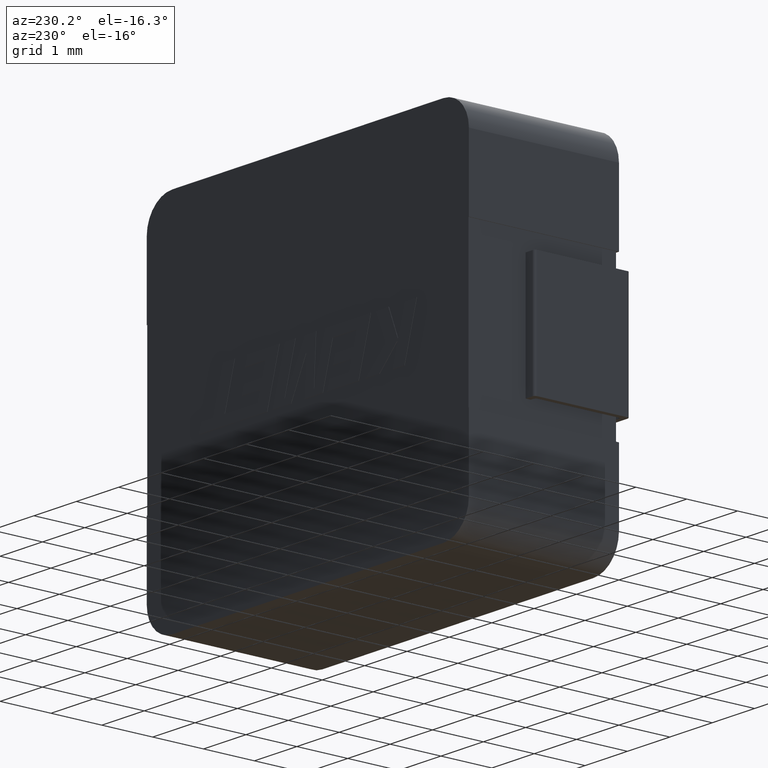
[diagram: clean part render]
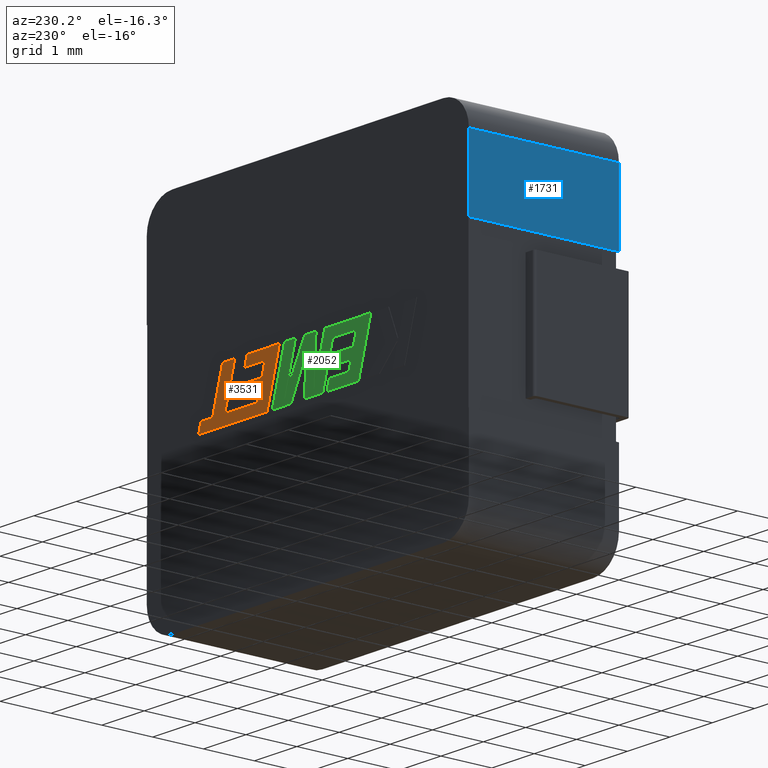
[diagram: same view with three faces highlighted in distinct colors, each labeled with its STEP entity id]
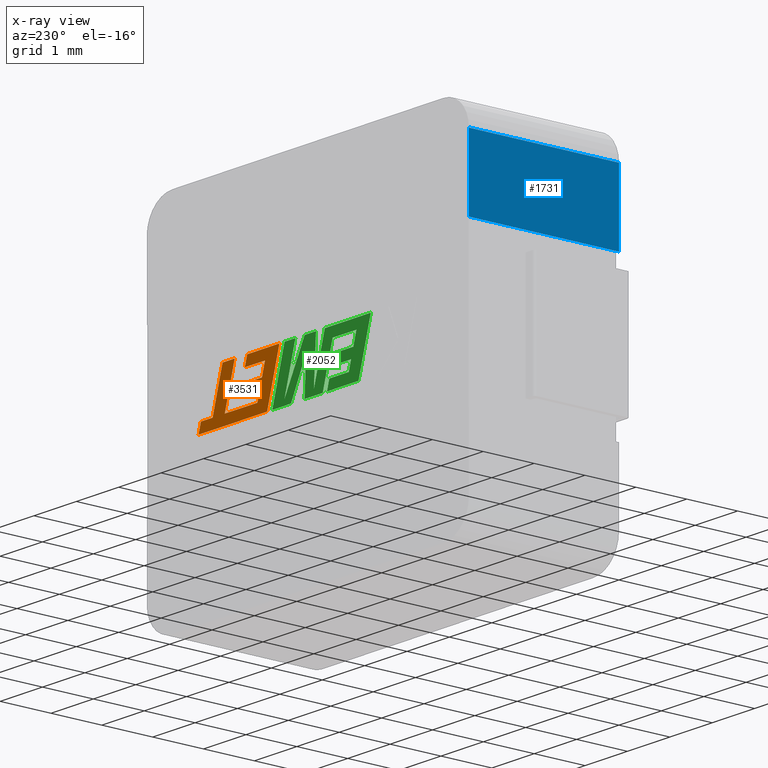
[diagram: x-ray of the same camera — body ghosted, the three highlighted faces saturated]
A machine part, auxiliary view with three faces highlighted in distinct colors.
The next image is the same camera in x-ray (body ghosted, the three faces saturated) — at least one of them is partly hidden behind the body in this view.
Their STEP definitions:

[orange] entity #3531 — the highlighted planar face has unit normal (0, 1, 0).
#38 = VECTOR ( 'NONE', #140, 1000.000000000000200 ) ;
#46 = CARTESIAN_POINT ( 'NONE',  ( 5.753147878350779900, 2.955000000000000100, -3.808034949697987100 ) ) ;
#122 = DIRECTION ( 'NONE',  ( -0.2763173343570112200, 0.0000000000000000000, 0.9610664548998865100 ) ) ;
#140 = DIRECTION ( 'NONE',  ( 0.2762033010287789900, 0.0000000000000000000, -0.9610992334305577000 ) ) ;
#179 = CARTESIAN_POINT ( 'NONE',  ( 5.362775363650112800, 2.955000000000000100, -3.623257972172823300 ) ) ;
#190 = CARTESIAN_POINT ( 'NONE',  ( 5.446681024994174600, 2.955000000000000100, -3.809460248614001500 ) ) ;
#199 = CARTESIAN_POINT ( 'NONE',  ( 6.040242927086403300, 2.955000000000000100, -3.808034949695465500 ) ) ;
#214 = DIRECTION ( 'NONE',  ( 0.9999999968487352000, 0.0000000000000000000, 7.938847109813044200E-005 ) ) ;
#279 = VERTEX_POINT ( 'NONE', #1738 ) ;
#302 = LINE ( 'NONE', #3608, #38 ) ;
#314 = ORIENTED_EDGE ( 'NONE', *, *, #2526, .T. ) ;
#320 = VECTOR ( 'NONE', #1106, 1000.000000000000000 ) ;
#374 = CARTESIAN_POINT ( 'NONE',  ( 4.930164958494196400, 2.955000000000000100, -3.623257972172823300 ) ) ;
#390 = LINE ( 'NONE', #199, #1824 ) ;
#431 = LINE ( 'NONE', #778, #1519 ) ;
#462 = ORIENTED_EDGE ( 'NONE', *, *, #2572, .T. ) ;
#486 = DIRECTION ( 'NONE',  ( -1.000000000000000000, 0.0000000000000000000, 0.0000000000000000000 ) ) ;
#502 = DIRECTION ( 'NONE',  ( 0.0000000000000000000, 1.000000000000000000, 0.0000000000000000000 ) ) ;
#517 = CARTESIAN_POINT ( 'NONE',  ( 5.309545813167985400, 2.955000000000000100, -3.436933089372855600 ) ) ;
#521 = LINE ( 'NONE', #3842, #3312 ) ;
#533 = EDGE_CURVE ( 'NONE', #1532, #2461, #2840, .T. ) ;
#579 = EDGE_CURVE ( 'NONE', #3465, #1869, #1626, .T. ) ;
#643 = DIRECTION ( 'NONE',  ( 0.9999891854650020400, 0.0000000000000000000, 0.004650693823684328200 ) ) ;
#740 = VERTEX_POINT ( 'NONE', #1454 ) ;
#765 = CARTESIAN_POINT ( 'NONE',  ( 6.372187382520818000, 2.955000000000000100, -4.002675608755097000 ) ) ;
#778 = CARTESIAN_POINT ( 'NONE',  ( 5.280009941438780900, 2.955000000000000100, -3.186423777971365100 ) ) ;
#783 = EDGE_CURVE ( 'NONE', #1142, #740, #1145, .T. ) ;
#847 = ORIENTED_EDGE ( 'NONE', *, *, #4043, .T. ) ;
#849 = EDGE_CURVE ( 'NONE', #2083, #1134, #390, .T. ) ;
#898 = ORIENTED_EDGE ( 'NONE', *, *, #2109, .T. ) ;
#974 = EDGE_CURVE ( 'NONE', #2824, #2083, #1678, .T. ) ;
#1030 = VECTOR ( 'NONE', #2540, 1000.000000000000000 ) ;
#1045 = VECTOR ( 'NONE', #3201, 1000.000000000000000 ) ;
#1087 = ORIENTED_EDGE ( 'NONE', *, *, #533, .T. ) ;
#1106 = DIRECTION ( 'NONE',  ( 1.000000000000000000, 0.0000000000000000000, 0.0000000000000000000 ) ) ;
#1112 = EDGE_LOOP ( 'NONE', ( #1201, #3598, #3621, #2164, #2642, #2489, #1182, #3610, #3518, #3800, #3056, #847, #1087, #2728, #314, #462, #898 ) ) ;
#1134 = VERTEX_POINT ( 'NONE', #1931 ) ;
#1142 = VERTEX_POINT ( 'NONE', #46 ) ;
#1145 = LINE ( 'NONE', #3346, #4076 ) ;
#1166 = DIRECTION ( 'NONE',  ( 1.000000000000000000, 0.0000000000000000000, 0.0000000000000000000 ) ) ;
#1182 = ORIENTED_EDGE ( 'NONE', *, *, #3481, .T. ) ;
#1187 = DIRECTION ( 'NONE',  ( 0.2762437428917434700, 0.0000000000000000000, -0.9610876102172788400 ) ) ;
#1201 = ORIENTED_EDGE ( 'NONE', *, *, #1806, .T. ) ;
#1230 = EDGE_CURVE ( 'NONE', #2726, #3299, #2417, .T. ) ;
#1284 = DIRECTION ( 'NONE',  ( 0.9999960426590096500, 0.0000000000000000000, 0.002813301676023187300 ) ) ;
#1454 = CARTESIAN_POINT ( 'NONE',  ( 5.519276249778748400, 2.955000000000000100, -2.994599999999968200 ) ) ;
#1500 = LINE ( 'NONE', #179, #2900 ) ;
#1519 = VECTOR ( 'NONE', #2334, 1000.000000000000000 ) ;
#1532 = VERTEX_POINT ( 'NONE', #2766 ) ;
#1538 = VECTOR ( 'NONE', #2576, 1000.000000000000000 ) ;
#1563 = VECTOR ( 'NONE', #1187, 1000.000000000000100 ) ;
#1574 = CARTESIAN_POINT ( 'NONE',  ( 5.280009941438780900, 2.955000000000000100, -3.186423777971365100 ) ) ;
#1610 = CARTESIAN_POINT ( 'NONE',  ( 5.806438732011991500, 2.955000000000000100, -2.994599999999968200 ) ) ;
#1626 = LINE ( 'NONE', #3850, #1878 ) ;
#1649 = VECTOR ( 'NONE', #2085, 1000.000000000000000 ) ;
#1678 = LINE ( 'NONE', #3094, #1563 ) ;
#1730 = VECTOR ( 'NONE', #2886, 1000.000000000000100 ) ;
#1738 = CARTESIAN_POINT ( 'NONE',  ( 5.362775363650112800, 2.955000000000000100, -3.623257972172823300 ) ) ;
#1747 = CARTESIAN_POINT ( 'NONE',  ( 4.876996711191258900, 2.955000000000000100, -3.436933089372855600 ) ) ;
#1795 = LINE ( 'NONE', #3698, #3251 ) ;
#1806 = EDGE_CURVE ( 'NONE', #2517, #3059, #521, .T. ) ;
#1814 = PLANE ( 'NONE',  #3159 ) ;
#1824 = VECTOR ( 'NONE', #214, 1000.000000000000100 ) ;
#1869 = VERTEX_POINT ( 'NONE', #1574 ) ;
#1875 = LINE ( 'NONE', #3504, #1045 ) ;
#1878 = VECTOR ( 'NONE', #3186, 1000.000000000000000 ) ;
#1915 = CARTESIAN_POINT ( 'NONE',  ( 4.805480422359723400, 2.955000000000000100, -3.186423777971365100 ) ) ;
#1931 = CARTESIAN_POINT ( 'NONE',  ( 6.316244725751672300, 2.955000000000000100, -3.808013038334580300 ) ) ;
#1933 = LINE ( 'NONE', #2916, #1538 ) ;
#1945 = CARTESIAN_POINT ( 'NONE',  ( 4.753906058524971300, 2.955000000000000100, -4.002675608755097000 ) ) ;
#1979 = VECTOR ( 'NONE', #643, 1000.000000000000200 ) ;
#2030 = EDGE_CURVE ( 'NONE', #3299, #3465, #2858, .T. ) ;
#2083 = VERTEX_POINT ( 'NONE', #3027 ) ;
#2085 = DIRECTION ( 'NONE',  ( 0.2793947940814893700, 0.0000000000000000000, -0.9601763114346042500 ) ) ;
#2109 = EDGE_CURVE ( 'NONE', #2363, #2517, #2506, .T. ) ;
#2164 = ORIENTED_EDGE ( 'NONE', *, *, #3281, .T. ) ;
#2185 = CARTESIAN_POINT ( 'NONE',  ( 5.446681024994174600, 2.955000000000000100, -3.809460248614001500 ) ) ;
#2334 = DIRECTION ( 'NONE',  ( -1.000000000000000000, 0.0000000000000000000, 0.0000000000000000000 ) ) ;
#2342 = CARTESIAN_POINT ( 'NONE',  ( 5.225578848644905100, 2.955000000000000100, -2.994599999999967700 ) ) ;
#2354 = CARTESIAN_POINT ( 'NONE',  ( 4.463948150511619400, 2.955000000000000100, -2.994599999999967700 ) ) ;
#2363 = VERTEX_POINT ( 'NONE', #374 ) ;
#2400 = CARTESIAN_POINT ( 'NONE',  ( 4.876996711191258900, 2.955000000000000100, -3.436933089372855600 ) ) ;
#2417 = LINE ( 'NONE', #1945, #1030 ) ;
#2461 = VERTEX_POINT ( 'NONE', #1747 ) ;
#2489 = ORIENTED_EDGE ( 'NONE', *, *, #849, .T. ) ;
#2506 = LINE ( 'NONE', #3067, #1649 ) ;
#2517 = VERTEX_POINT ( 'NONE', #3681 ) ;
#2526 = EDGE_CURVE ( 'NONE', #3529, #279, #1795, .T. ) ;
#2540 = DIRECTION ( 'NONE',  ( -0.2764273280489764600, 0.0000000000000000000, 0.9610348236706636200 ) ) ;
#2572 = EDGE_CURVE ( 'NONE', #279, #2363, #1500, .T. ) ;
#2576 = DIRECTION ( 'NONE',  ( -1.000000000000000000, 0.0000000000000000000, 0.0000000000000000000 ) ) ;
#2642 = ORIENTED_EDGE ( 'NONE', *, *, #974, .T. ) ;
#2726 = VERTEX_POINT ( 'NONE', #3498 ) ;
#2728 = ORIENTED_EDGE ( 'NONE', *, *, #3536, .T. ) ;
#2747 = CARTESIAN_POINT ( 'NONE',  ( -0.02245865087966304000, 2.955000000000000100, 0.001344869306663457100 ) ) ;
#2749 = EDGE_CURVE ( 'NONE', #3059, #1142, #2844, .T. ) ;
#2766 = CARTESIAN_POINT ( 'NONE',  ( 4.805480422359723400, 2.955000000000000100, -3.186423777971365100 ) ) ;
#2807 = EDGE_CURVE ( 'NONE', #2992, #2726, #1933, .T. ) ;
#2824 = VERTEX_POINT ( 'NONE', #1610 ) ;
#2839 = FACE_OUTER_BOUND ( 'NONE', #1112, .T. ) ;
#2840 = LINE ( 'NONE', #1915, #1730 ) ;
#2844 = LINE ( 'NONE', #2185, #1979 ) ;
#2858 = LINE ( 'NONE', #2354, #320 ) ;
#2886 = DIRECTION ( 'NONE',  ( 0.2745159998572669300, 0.0000000000000000000, -0.9615825319869142400 ) ) ;
#2900 = VECTOR ( 'NONE', #486, 1000.000000000000000 ) ;
#2916 = CARTESIAN_POINT ( 'NONE',  ( 6.372187382520818000, 2.955000000000000100, -4.002675608755097000 ) ) ;
#2992 = VERTEX_POINT ( 'NONE', #765 ) ;
#3027 = CARTESIAN_POINT ( 'NONE',  ( 6.040242927086403300, 2.955000000000000100, -3.808034949695465500 ) ) ;
#3056 = ORIENTED_EDGE ( 'NONE', *, *, #579, .T. ) ;
#3059 = VERTEX_POINT ( 'NONE', #190 ) ;
#3067 = CARTESIAN_POINT ( 'NONE',  ( 4.930164958494196400, 2.955000000000000100, -3.623257972172823300 ) ) ;
#3094 = CARTESIAN_POINT ( 'NONE',  ( 5.806438732011991500, 2.955000000000000100, -2.994599999999968200 ) ) ;
#3159 = AXIS2_PLACEMENT_3D ( 'NONE', #2747, #502, #4045 ) ;
#3186 = DIRECTION ( 'NONE',  ( 0.2729786930695570200, 0.0000000000000000000, -0.9620200793798623400 ) ) ;
#3201 = DIRECTION ( 'NONE',  ( 1.000000000000000000, 0.0000000000000000000, 0.0000000000000000000 ) ) ;
#3251 = VECTOR ( 'NONE', #3344, 1000.000000000000100 ) ;
#3281 = EDGE_CURVE ( 'NONE', #740, #2824, #1875, .T. ) ;
#3299 = VERTEX_POINT ( 'NONE', #4132 ) ;
#3312 = VECTOR ( 'NONE', #1284, 999.9999999999998900 ) ;
#3344 = DIRECTION ( 'NONE',  ( 0.2746918797667234900, 0.0000000000000000000, -0.9615323037684298000 ) ) ;
#3346 = CARTESIAN_POINT ( 'NONE',  ( 5.753147878350779900, 2.955000000000000100, -3.808034949697987100 ) ) ;
#3465 = VERTEX_POINT ( 'NONE', #2342 ) ;
#3481 = EDGE_CURVE ( 'NONE', #1134, #2992, #302, .T. ) ;
#3498 = CARTESIAN_POINT ( 'NONE',  ( 4.753906058524971300, 2.955000000000000100, -4.002675608755097000 ) ) ;
#3504 = CARTESIAN_POINT ( 'NONE',  ( 5.519276249778748400, 2.955000000000000100, -2.994599999999968200 ) ) ;
#3518 = ORIENTED_EDGE ( 'NONE', *, *, #1230, .T. ) ;
#3529 = VERTEX_POINT ( 'NONE', #517 ) ;
#3531 = ADVANCED_FACE ( 'NONE', ( #2839 ), #1814, .T. ) ;
#3536 = EDGE_CURVE ( 'NONE', #2461, #3529, #3669, .T. ) ;
#3598 = ORIENTED_EDGE ( 'NONE', *, *, #2749, .T. ) ;
#3608 = CARTESIAN_POINT ( 'NONE',  ( 6.316244725751672300, 2.955000000000000100, -3.808013038334580300 ) ) ;
#3610 = ORIENTED_EDGE ( 'NONE', *, *, #2807, .T. ) ;
#3619 = VECTOR ( 'NONE', #1166, 1000.000000000000000 ) ;
#3621 = ORIENTED_EDGE ( 'NONE', *, *, #783, .T. ) ;
#3669 = LINE ( 'NONE', #2400, #3619 ) ;
#3681 = CARTESIAN_POINT ( 'NONE',  ( 4.984724787964504200, 2.955000000000000100, -3.810759876012955100 ) ) ;
#3698 = CARTESIAN_POINT ( 'NONE',  ( 5.309545813167985400, 2.955000000000000100, -3.436933089372855600 ) ) ;
#3800 = ORIENTED_EDGE ( 'NONE', *, *, #2030, .T. ) ;
#3842 = CARTESIAN_POINT ( 'NONE',  ( 4.984724787964504200, 2.955000000000000100, -3.810759876012955100 ) ) ;
#3850 = CARTESIAN_POINT ( 'NONE',  ( 5.225578848644905100, 2.955000000000000100, -2.994599999999967700 ) ) ;
#4043 = EDGE_CURVE ( 'NONE', #1869, #1532, #431, .T. ) ;
#4045 = DIRECTION ( 'NONE',  ( 0.0000000000000000000, 0.0000000000000000000, 1.000000000000000000 ) ) ;
#4076 = VECTOR ( 'NONE', #122, 1000.000000000000100 ) ;
#4132 = CARTESIAN_POINT ( 'NONE',  ( 4.463948150511619400, 2.955000000000000100, -2.994599999999967700 ) ) ;

[blue] entity #1731 — the highlighted planar face has unit normal (-1, 0, 0).
#71 = VECTOR ( 'NONE', #1081, 1000.000000000000000 ) ;
#120 = ORIENTED_EDGE ( 'NONE', *, *, #3615, .T. ) ;
#217 = CARTESIAN_POINT ( 'NONE',  ( 0.0000000000000000000, 2.950000000000000200, -0.5998999999999999900 ) ) ;
#252 = VECTOR ( 'NONE', #937, 1000.000000000000000 ) ;
#284 = LINE ( 'NONE', #1690, #71 ) ;
#607 = EDGE_CURVE ( 'NONE', #3502, #1130, #4122, .T. ) ;
#704 = DIRECTION ( 'NONE',  ( 0.0000000000000000000, 0.0000000000000000000, -1.000000000000000000 ) ) ;
#728 = ORIENTED_EDGE ( 'NONE', *, *, #1328, .T. ) ;
#937 = DIRECTION ( 'NONE',  ( -0.0000000000000000000, 1.000000000000000000, -0.0000000000000000000 ) ) ;
#942 = DIRECTION ( 'NONE',  ( 0.0000000000000000000, 0.0000000000000000000, -1.000000000000000000 ) ) ;
#1071 = FACE_OUTER_BOUND ( 'NONE', #3125, .T. ) ;
#1081 = DIRECTION ( 'NONE',  ( -0.0000000000000000000, -1.000000000000000000, -0.0000000000000000000 ) ) ;
#1130 = VERTEX_POINT ( 'NONE', #2863 ) ;
#1169 = AXIS2_PLACEMENT_3D ( 'NONE', #3780, #2510, #2575 ) ;
#1197 = LINE ( 'NONE', #1554, #252 ) ;
#1328 = EDGE_CURVE ( 'NONE', #1130, #2450, #284, .T. ) ;
#1554 = CARTESIAN_POINT ( 'NONE',  ( 0.0000000000000000000, 2.950000000000000200, -0.5998999999999999900 ) ) ;
#1635 = VECTOR ( 'NONE', #704, 1000.000000000000000 ) ;
#1690 = CARTESIAN_POINT ( 'NONE',  ( 0.0000000000000000000, 0.05000000000000000300, -2.000000000000000000 ) ) ;
#1731 = ADVANCED_FACE ( 'NONE', ( #1071 ), #3463, .T. ) ;
#1932 = CARTESIAN_POINT ( 'NONE',  ( 0.0000000000000000000, 0.0000000000000000000, -0.5998999999999999900 ) ) ;
#2279 = LINE ( 'NONE', #2950, #1635 ) ;
#2414 = VERTEX_POINT ( 'NONE', #1932 ) ;
#2450 = VERTEX_POINT ( 'NONE', #3644 ) ;
#2510 = DIRECTION ( 'NONE',  ( -1.000000000000000000, 0.0000000000000000000, 0.0000000000000000000 ) ) ;
#2575 = DIRECTION ( 'NONE',  ( 0.0000000000000000000, 0.0000000000000000000, 1.000000000000000000 ) ) ;
#2800 = EDGE_CURVE ( 'NONE', #2414, #2450, #2279, .T. ) ;
#2863 = CARTESIAN_POINT ( 'NONE',  ( 0.0000000000000000000, 2.950000000000000200, -2.000000000000000000 ) ) ;
#2950 = CARTESIAN_POINT ( 'NONE',  ( 0.0000000000000000000, 0.0000000000000000000, 0.0000000000000000000 ) ) ;
#2961 = ORIENTED_EDGE ( 'NONE', *, *, #607, .T. ) ;
#3087 = VECTOR ( 'NONE', #942, 1000.000000000000000 ) ;
#3125 = EDGE_LOOP ( 'NONE', ( #2961, #728, #3315, #120 ) ) ;
#3315 = ORIENTED_EDGE ( 'NONE', *, *, #2800, .F. ) ;
#3463 = PLANE ( 'NONE',  #1169 ) ;
#3502 = VERTEX_POINT ( 'NONE', #217 ) ;
#3615 = EDGE_CURVE ( 'NONE', #2414, #3502, #1197, .T. ) ;
#3644 = CARTESIAN_POINT ( 'NONE',  ( 0.0000000000000000000, 0.0000000000000000000, -2.000000000000000000 ) ) ;
#3780 = CARTESIAN_POINT ( 'NONE',  ( 0.0000000000000000000, 2.950000000000000200, 0.0000000000000000000 ) ) ;
#4115 = CARTESIAN_POINT ( 'NONE',  ( 0.0000000000000000000, 2.950000000000000200, 0.0000000000000000000 ) ) ;
#4122 = LINE ( 'NONE', #4115, #3087 ) ;

[green] entity #2052 — the highlighted planar face has unit normal (0, -1, 0).
#1 = VECTOR ( 'NONE', #693, 1000.000000000000100 ) ;
#23 = VERTEX_POINT ( 'NONE', #3063 ) ;
#52 = DIRECTION ( 'NONE',  ( -1.000000000000000000, 0.0000000000000000000, 0.0000000000000000000 ) ) ;
#53 = CARTESIAN_POINT ( 'NONE',  ( 3.650930062431025000, 2.955000000000000100, -3.892063217402859500 ) ) ;
#64 = CARTESIAN_POINT ( 'NONE',  ( 3.207968616274165200, 2.955000000000000100, -3.186386996066438800 ) ) ;
#132 = EDGE_CURVE ( 'NONE', #2757, #3617, #2892, .T. ) ;
#188 = VECTOR ( 'NONE', #2305, 1000.000000000000200 ) ;
#191 = ORIENTED_EDGE ( 'NONE', *, *, #1122, .T. ) ;
#253 = CARTESIAN_POINT ( 'NONE',  ( 4.086461564074593200, 2.955000000000000100, -2.994599999999967700 ) ) ;
#345 = ORIENTED_EDGE ( 'NONE', *, *, #3491, .T. ) ;
#372 = EDGE_CURVE ( 'NONE', #1723, #3930, #4079, .T. ) ;
#377 = LINE ( 'NONE', #524, #3021 ) ;
#403 = CARTESIAN_POINT ( 'NONE',  ( 3.153151313453042900, 2.955000000000000100, -3.436933089374956100 ) ) ;
#413 = ORIENTED_EDGE ( 'NONE', *, *, #2087, .T. ) ;
#453 = LINE ( 'NONE', #1833, #2583 ) ;
#472 = EDGE_CURVE ( 'NONE', #1478, #23, #2227, .T. ) ;
#475 = ORIENTED_EDGE ( 'NONE', *, *, #3009, .T. ) ;
#479 = CARTESIAN_POINT ( 'NONE',  ( 2.828262854754878000, 2.955000000000000100, -3.810793592762646000 ) ) ;
#482 = CARTESIAN_POINT ( 'NONE',  ( 3.342050929782331500, 2.955000000000000100, -4.002675608755097000 ) ) ;
#483 = LINE ( 'NONE', #2005, #188 ) ;
#505 = EDGE_CURVE ( 'NONE', #2732, #1478, #453, .T. ) ;
#524 = CARTESIAN_POINT ( 'NONE',  ( 2.597318452990019300, 2.955000000000000100, -4.002675608755097000 ) ) ;
#561 = VERTEX_POINT ( 'NONE', #926 ) ;
#562 = CARTESIAN_POINT ( 'NONE',  ( 4.086461564074593200, 2.955000000000000100, -2.994599999999967700 ) ) ;
#563 = EDGE_CURVE ( 'NONE', #561, #882, #1686, .T. ) ;
#574 = CARTESIAN_POINT ( 'NONE',  ( 2.307234873459483200, 2.955000000000000100, -2.994599999999967300 ) ) ;
#631 = DIRECTION ( 'NONE',  ( 1.000000000000000000, 0.0000000000000000000, -9.567479535905721900E-016 ) ) ;
#674 = DIRECTION ( 'NONE',  ( -1.000000000000000000, 0.0000000000000000000, 0.0000000000000000000 ) ) ;
#693 = DIRECTION ( 'NONE',  ( 0.2763139702539128600, 0.0000000000000000000, -0.9610674221107069500 ) ) ;
#758 = VECTOR ( 'NONE', #1732, 1000.000000000000000 ) ;
#780 = VERTEX_POINT ( 'NONE', #3026 ) ;
#795 = VECTOR ( 'NONE', #3847, 1000.000000000000200 ) ;
#801 = ORIENTED_EDGE ( 'NONE', *, *, #1466, .T. ) ;
#809 = EDGE_CURVE ( 'NONE', #3791, #561, #1568, .T. ) ;
#826 = VERTEX_POINT ( 'NONE', #2397 ) ;
#827 = DIRECTION ( 'NONE',  ( 0.05375259206908269300, 0.0000000000000000000, -0.9985542843760947300 ) ) ;
#850 = LINE ( 'NONE', #3661, #1209 ) ;
#882 = VERTEX_POINT ( 'NONE', #3106 ) ;
#926 = CARTESIAN_POINT ( 'NONE',  ( 3.871904141607728400, 2.955000000000000100, -4.002675608755097000 ) ) ;
#981 = CARTESIAN_POINT ( 'NONE',  ( 2.828262854754878000, 2.955000000000000100, -3.810793592762646000 ) ) ;
#986 = VERTEX_POINT ( 'NONE', #2410 ) ;
#990 = VECTOR ( 'NONE', #2533, 1000.000000000000000 ) ;
#1008 = LINE ( 'NONE', #1760, #758 ) ;
#1017 = VERTEX_POINT ( 'NONE', #1889 ) ;
#1090 = CARTESIAN_POINT ( 'NONE',  ( 2.649147225822318800, 2.955000000000000100, -3.186386996066438800 ) ) ;
#1109 = ORIENTED_EDGE ( 'NONE', *, *, #1172, .T. ) ;
#1119 = DIRECTION ( 'NONE',  ( 0.0000000000000000000, -1.000000000000000000, 0.0000000000000000000 ) ) ;
#1122 = EDGE_CURVE ( 'NONE', #3930, #2799, #1386, .T. ) ;
#1148 = LINE ( 'NONE', #1208, #990 ) ;
#1172 = EDGE_CURVE ( 'NONE', #3198, #3406, #1906, .T. ) ;
#1181 = ORIENTED_EDGE ( 'NONE', *, *, #2449, .T. ) ;
#1192 = VECTOR ( 'NONE', #827, 1000.000000000000200 ) ;
#1208 = CARTESIAN_POINT ( 'NONE',  ( 4.190323223642890200, 2.955000000000000100, -4.002675608755097000 ) ) ;
#1209 = VECTOR ( 'NONE', #3064, 1000.000000000000000 ) ;
#1272 = VERTEX_POINT ( 'NONE', #2977 ) ;
#1293 = CARTESIAN_POINT ( 'NONE',  ( 3.207968616274165200, 2.955000000000000100, -3.186386996066438800 ) ) ;
#1312 = VECTOR ( 'NONE', #1683, 1000.000000000000100 ) ;
#1354 = EDGE_CURVE ( 'NONE', #2355, #3078, #1667, .T. ) ;
#1370 = CARTESIAN_POINT ( 'NONE',  ( 3.287552403489906200, 2.955000000000000100, -3.810793592762646000 ) ) ;
#1385 = LINE ( 'NONE', #482, #3773 ) ;
#1386 = LINE ( 'NONE', #2248, #3425 ) ;
#1400 = ORIENTED_EDGE ( 'NONE', *, *, #2962, .T. ) ;
#1403 = VECTOR ( 'NONE', #3940, 1000.000000000000100 ) ;
#1442 = CARTESIAN_POINT ( 'NONE',  ( 3.287552403489906200, 2.955000000000000100, -3.810793592762646000 ) ) ;
#1466 = EDGE_CURVE ( 'NONE', #826, #3198, #377, .T. ) ;
#1474 = VECTOR ( 'NONE', #2392, 1000.000000000000000 ) ;
#1478 = VERTEX_POINT ( 'NONE', #253 ) ;
#1480 = CARTESIAN_POINT ( 'NONE',  ( 3.650930062431025000, 2.955000000000000100, -3.892063217402859500 ) ) ;
#1487 = CARTESIAN_POINT ( 'NONE',  ( 3.833136436288118600, 2.955000000000000100, -3.282493441677940500 ) ) ;
#1560 = VECTOR ( 'NONE', #3035, 1000.000000000000100 ) ;
#1568 = LINE ( 'NONE', #1487, #1192 ) ;
#1572 = DIRECTION ( 'NONE',  ( -1.000000000000000000, 0.0000000000000000000, 0.0000000000000000000 ) ) ;
#1652 = LINE ( 'NONE', #1090, #1312 ) ;
#1667 = LINE ( 'NONE', #479, #1474 ) ;
#1683 = DIRECTION ( 'NONE',  ( 0.2740217765954086100, 0.0000000000000000000, -0.9617234872620590300 ) ) ;
#1686 = LINE ( 'NONE', #1893, #3180 ) ;
#1723 = VERTEX_POINT ( 'NONE', #53 ) ;
#1732 = DIRECTION ( 'NONE',  ( -1.000000000000000000, 0.0000000000000000000, 0.0000000000000000000 ) ) ;
#1760 = CARTESIAN_POINT ( 'NONE',  ( 4.632458329441793600, 2.955000000000000100, -4.002675608755097000 ) ) ;
#1766 = VERTEX_POINT ( 'NONE', #64 ) ;
#1827 = ORIENTED_EDGE ( 'NONE', *, *, #3252, .T. ) ;
#1833 = CARTESIAN_POINT ( 'NONE',  ( 4.345424583884904400, 2.955000000000000100, -3.896385091533007400 ) ) ;
#1856 = ORIENTED_EDGE ( 'NONE', *, *, #2333, .T. ) ;
#1889 = CARTESIAN_POINT ( 'NONE',  ( 3.342050929782331500, 2.955000000000000100, -4.002675608755097000 ) ) ;
#1893 = CARTESIAN_POINT ( 'NONE',  ( 3.871904141607728400, 2.955000000000000100, -4.002675608755097000 ) ) ;
#1906 = LINE ( 'NONE', #2561, #2672 ) ;
#1919 = EDGE_CURVE ( 'NONE', #1272, #780, #1652, .T. ) ;
#1940 = CARTESIAN_POINT ( 'NONE',  ( 3.206380863936342700, 2.955000000000000100, -3.623291688923047500 ) ) ;
#1983 = CARTESIAN_POINT ( 'NONE',  ( 3.869368615644170900, 2.955000000000000100, -2.994599999999967700 ) ) ;
#1987 = VECTOR ( 'NONE', #674, 1000.000000000000000 ) ;
#2005 = CARTESIAN_POINT ( 'NONE',  ( 3.442600404273501400, 2.955000000000000100, -4.002675608755097000 ) ) ;
#2042 = DIRECTION ( 'NONE',  ( 0.4668459304955210300, 0.0000000000000000000, -0.8843386665637611400 ) ) ;
#2052 = ADVANCED_FACE ( 'NONE', ( #4095 ), #3331, .F. ) ;
#2078 = VERTEX_POINT ( 'NONE', #3347 ) ;
#2080 = DIRECTION ( 'NONE',  ( -1.000000000000000000, 0.0000000000000000000, 0.0000000000000000000 ) ) ;
#2087 = EDGE_CURVE ( 'NONE', #2078, #2217, #1008, .T. ) ;
#2103 = DIRECTION ( 'NONE',  ( -0.2765379750249958900, 0.0000000000000000000, 0.9610029908221279200 ) ) ;
#2115 = ORIENTED_EDGE ( 'NONE', *, *, #809, .T. ) ;
#2176 = ORIENTED_EDGE ( 'NONE', *, *, #3966, .T. ) ;
#2217 = VERTEX_POINT ( 'NONE', #3116 ) ;
#2227 = LINE ( 'NONE', #562, #3831 ) ;
#2232 = LINE ( 'NONE', #403, #795 ) ;
#2248 = CARTESIAN_POINT ( 'NONE',  ( 3.600624673595562700, 2.955000000000000100, -2.994599999999967700 ) ) ;
#2305 = DIRECTION ( 'NONE',  ( -0.2762517575166169600, 0.0000000000000000000, 0.9610853065513904600 ) ) ;
#2313 = ORIENTED_EDGE ( 'NONE', *, *, #2419, .T. ) ;
#2333 = EDGE_CURVE ( 'NONE', #1766, #1272, #3298, .T. ) ;
#2355 = VERTEX_POINT ( 'NONE', #981 ) ;
#2376 = VECTOR ( 'NONE', #2042, 1000.000000000000100 ) ;
#2392 = DIRECTION ( 'NONE',  ( 1.000000000000000000, 0.0000000000000000000, 0.0000000000000000000 ) ) ;
#2397 = CARTESIAN_POINT ( 'NONE',  ( 2.597318452990019300, 2.955000000000000100, -4.002675608755097000 ) ) ;
#2398 = ORIENTED_EDGE ( 'NONE', *, *, #4037, .T. ) ;
#2410 = CARTESIAN_POINT ( 'NONE',  ( 3.153151313453042900, 2.955000000000000100, -3.436933089374956100 ) ) ;
#2419 = EDGE_CURVE ( 'NONE', #23, #2078, #3195, .T. ) ;
#2449 = EDGE_CURVE ( 'NONE', #780, #986, #850, .T. ) ;
#2463 = AXIS2_PLACEMENT_3D ( 'NONE', #2703, #1119, #3637 ) ;
#2491 = LINE ( 'NONE', #3977, #2376 ) ;
#2521 = LINE ( 'NONE', #3323, #1560 ) ;
#2533 = DIRECTION ( 'NONE',  ( -0.4443210308329219600, 0.0000000000000000000, 0.8958676361826950500 ) ) ;
#2551 = CARTESIAN_POINT ( 'NONE',  ( 3.206380863936342700, 2.955000000000000100, -3.623291688923047500 ) ) ;
#2553 = DIRECTION ( 'NONE',  ( 1.000000000000000000, 0.0000000000000000000, 0.0000000000000000000 ) ) ;
#2561 = CARTESIAN_POINT ( 'NONE',  ( 2.307234873459483200, 2.955000000000000100, -2.994599999999967300 ) ) ;
#2583 = VECTOR ( 'NONE', #2867, 1000.000000000000100 ) ;
#2623 = ORIENTED_EDGE ( 'NONE', *, *, #1354, .T. ) ;
#2653 = CARTESIAN_POINT ( 'NONE',  ( 3.833136436288118600, 2.955000000000000100, -3.282493441677940500 ) ) ;
#2672 = VECTOR ( 'NONE', #631, 1000.000000000000000 ) ;
#2689 = VECTOR ( 'NONE', #52, 1000.000000000000000 ) ;
#2703 = CARTESIAN_POINT ( 'NONE',  ( -0.02245865087966304000, 2.954999999999999200, 0.001344869306663457100 ) ) ;
#2720 = DIRECTION ( 'NONE',  ( 0.2793947940878301900, 0.0000000000000000000, -0.9601763114327591700 ) ) ;
#2732 = VERTEX_POINT ( 'NONE', #2850 ) ;
#2735 = CARTESIAN_POINT ( 'NONE',  ( 2.773703025283382800, 2.955000000000000100, -3.623291688923047500 ) ) ;
#2757 = VERTEX_POINT ( 'NONE', #2551 ) ;
#2799 = VERTEX_POINT ( 'NONE', #1983 ) ;
#2823 = EDGE_CURVE ( 'NONE', #986, #2757, #2232, .T. ) ;
#2850 = CARTESIAN_POINT ( 'NONE',  ( 4.345424583884904400, 2.955000000000000100, -3.896385091533007400 ) ) ;
#2867 = DIRECTION ( 'NONE',  ( -0.2760118818968561000, 0.0000000000000000000, 0.9611542233438689100 ) ) ;
#2892 = LINE ( 'NONE', #1940, #2689 ) ;
#2899 = ORIENTED_EDGE ( 'NONE', *, *, #563, .T. ) ;
#2921 = ORIENTED_EDGE ( 'NONE', *, *, #472, .T. ) ;
#2962 = EDGE_CURVE ( 'NONE', #3078, #1017, #3575, .T. ) ;
#2977 = CARTESIAN_POINT ( 'NONE',  ( 2.649147225822318800, 2.955000000000000100, -3.186386996066438800 ) ) ;
#3009 = EDGE_CURVE ( 'NONE', #3617, #2355, #3392, .T. ) ;
#3021 = VECTOR ( 'NONE', #2103, 999.9999999999998900 ) ;
#3026 = CARTESIAN_POINT ( 'NONE',  ( 2.720534777979222200, 2.955000000000000100, -3.436933089374956100 ) ) ;
#3035 = DIRECTION ( 'NONE',  ( 0.2759782365590804900, 0.0000000000000000000, -0.9611638845408936300 ) ) ;
#3047 = VECTOR ( 'NONE', #2720, 1000.000000000000100 ) ;
#3063 = CARTESIAN_POINT ( 'NONE',  ( 4.342629158914386200, 2.955000000000000100, -2.994599999999967700 ) ) ;
#3064 = DIRECTION ( 'NONE',  ( 1.000000000000000000, 0.0000000000000000000, 0.0000000000000000000 ) ) ;
#3078 = VERTEX_POINT ( 'NONE', #1442 ) ;
#3099 = DIRECTION ( 'NONE',  ( 1.000000000000000000, 0.0000000000000000000, 0.0000000000000000000 ) ) ;
#3100 = EDGE_LOOP ( 'NONE', ( #413, #1827, #2115, #2899, #2398, #1856, #4106, #1181, #3603, #3826, #475, #2623, #1400, #3846, #801, #1109, #2176, #3183, #191, #345, #3117, #2921, #2313 ) ) ;
#3106 = CARTESIAN_POINT ( 'NONE',  ( 3.442600404273501400, 2.955000000000000100, -4.002675608755097000 ) ) ;
#3116 = CARTESIAN_POINT ( 'NONE',  ( 4.190323223642890200, 2.955000000000000100, -4.002675608755097000 ) ) ;
#3117 = ORIENTED_EDGE ( 'NONE', *, *, #505, .T. ) ;
#3134 = VECTOR ( 'NONE', #4020, 1000.000000000000100 ) ;
#3180 = VECTOR ( 'NONE', #1572, 1000.000000000000000 ) ;
#3183 = ORIENTED_EDGE ( 'NONE', *, *, #372, .T. ) ;
#3195 = LINE ( 'NONE', #3540, #1 ) ;
#3198 = VERTEX_POINT ( 'NONE', #574 ) ;
#3252 = EDGE_CURVE ( 'NONE', #2217, #3791, #1148, .T. ) ;
#3298 = LINE ( 'NONE', #1293, #1987 ) ;
#3323 = CARTESIAN_POINT ( 'NONE',  ( 3.393242148747298800, 2.955000000000000100, -2.994599999999967700 ) ) ;
#3331 = PLANE ( 'NONE',  #2463 ) ;
#3347 = CARTESIAN_POINT ( 'NONE',  ( 4.632458329441793600, 2.955000000000000100, -4.002675608755097000 ) ) ;
#3392 = LINE ( 'NONE', #2735, #3047 ) ;
#3406 = VERTEX_POINT ( 'NONE', #3868 ) ;
#3425 = VECTOR ( 'NONE', #2553, 1000.000000000000000 ) ;
#3445 = CARTESIAN_POINT ( 'NONE',  ( 2.773703025283382800, 2.955000000000000100, -3.623291688923047500 ) ) ;
#3491 = EDGE_CURVE ( 'NONE', #2799, #2732, #2491, .T. ) ;
#3540 = CARTESIAN_POINT ( 'NONE',  ( 4.342629158914386200, 2.955000000000000100, -2.994599999999967700 ) ) ;
#3575 = LINE ( 'NONE', #1370, #1403 ) ;
#3603 = ORIENTED_EDGE ( 'NONE', *, *, #2823, .T. ) ;
#3617 = VERTEX_POINT ( 'NONE', #3445 ) ;
#3637 = DIRECTION ( 'NONE',  ( 0.0000000000000000000, 0.0000000000000000000, -1.000000000000000000 ) ) ;
#3661 = CARTESIAN_POINT ( 'NONE',  ( 2.720534777979222200, 2.955000000000000100, -3.436933089374956100 ) ) ;
#3773 = VECTOR ( 'NONE', #2080, 1000.000000000000000 ) ;
#3791 = VERTEX_POINT ( 'NONE', #2653 ) ;
#3826 = ORIENTED_EDGE ( 'NONE', *, *, #132, .T. ) ;
#3831 = VECTOR ( 'NONE', #3099, 1000.000000000000000 ) ;
#3846 = ORIENTED_EDGE ( 'NONE', *, *, #3931, .T. ) ;
#3847 = DIRECTION ( 'NONE',  ( 0.2746459304916903900, 0.0000000000000000000, -0.9615454294334477800 ) ) ;
#3868 = CARTESIAN_POINT ( 'NONE',  ( 3.393242148747298800, 2.955000000000000100, -2.994599999999967700 ) ) ;
#3930 = VERTEX_POINT ( 'NONE', #3955 ) ;
#3931 = EDGE_CURVE ( 'NONE', #1017, #826, #1385, .T. ) ;
#3940 = DIRECTION ( 'NONE',  ( 0.2732148821745940500, 0.0000000000000000000, -0.9619530280415580200 ) ) ;
#3955 = CARTESIAN_POINT ( 'NONE',  ( 3.600624673595562700, 2.955000000000000100, -2.994599999999967700 ) ) ;
#3966 = EDGE_CURVE ( 'NONE', #3406, #1723, #2521, .T. ) ;
#3977 = CARTESIAN_POINT ( 'NONE',  ( 3.869368615644170900, 2.955000000000000100, -2.994599999999967700 ) ) ;
#4020 = DIRECTION ( 'NONE',  ( -0.05596501978068242600, 0.0000000000000000000, 0.9984327301130245800 ) ) ;
#4037 = EDGE_CURVE ( 'NONE', #882, #1766, #483, .T. ) ;
#4079 = LINE ( 'NONE', #1480, #3134 ) ;
#4095 = FACE_OUTER_BOUND ( 'NONE', #3100, .T. ) ;
#4106 = ORIENTED_EDGE ( 'NONE', *, *, #1919, .T. ) ;